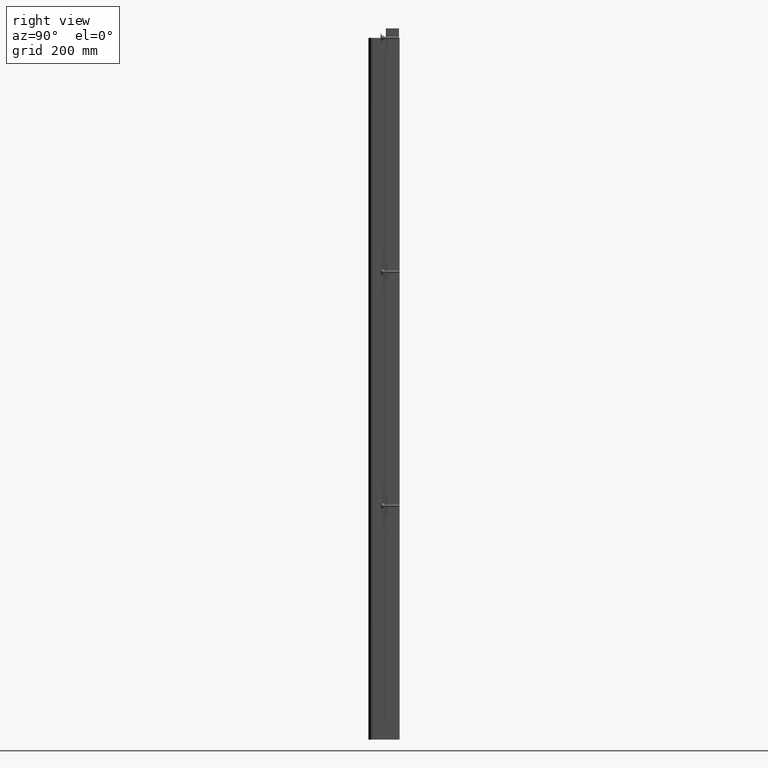
[diagram: clean part render]
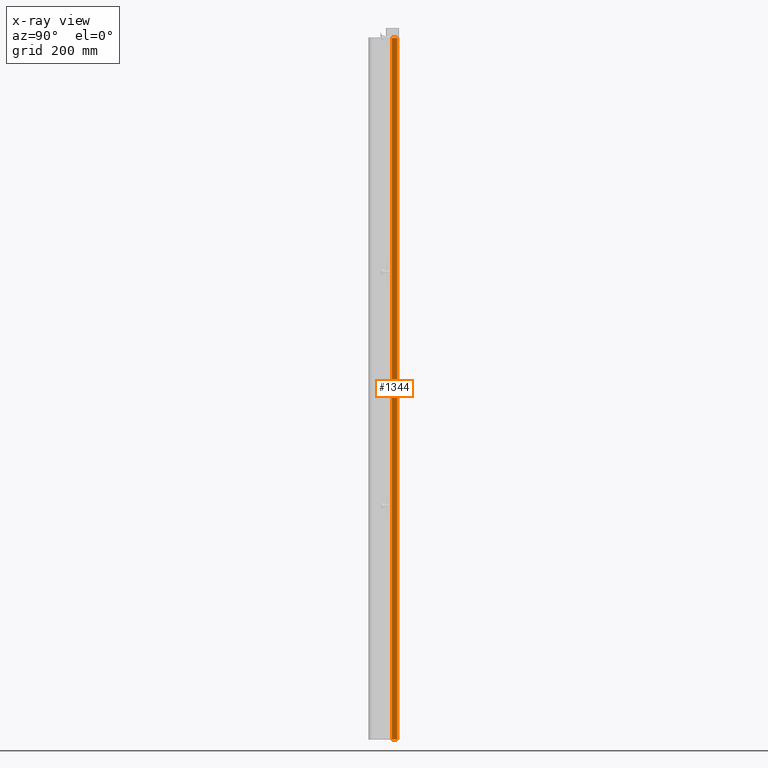
[diagram: x-ray — body ghosted, one internal face saturated and labeled with its STEP entity id]
A machine part, right view, then the same camera in x-ray: the body is ghosted and one INTERNAL B-rep face — a face not visible from any outside direction — is saturated and labeled: STEP entity #1344.
In plain terms, the highlighted planar face has unit normal (-1, 0, 0).
Its self-contained STEP definition (entity closure, byte-faithful):
#323=DIRECTION('',(0.E0,0.E0,-1.E0));
#324=VECTOR('',#323,1.76E1);
#325=CARTESIAN_POINT('',(-1.171E1,-1.2E3,-2.33E1));
#326=LINE('',#325,#324);
#353=DIRECTION('',(0.E0,0.E0,-1.E0));
#354=VECTOR('',#353,1.76E1);
#355=CARTESIAN_POINT('',(-1.171E1,1.2E3,-2.33E1));
#356=LINE('',#355,#354);
#473=DIRECTION('',(0.E0,1.E0,0.E0));
#474=VECTOR('',#473,2.4E3);
#475=CARTESIAN_POINT('',(-1.171E1,-1.2E3,-4.09E1));
#476=LINE('',#475,#474);
#477=DIRECTION('',(0.E0,1.E0,0.E0));
#478=VECTOR('',#477,2.4E3);
#479=CARTESIAN_POINT('',(-1.171E1,-1.2E3,-2.33E1));
#480=LINE('',#479,#478);
#859=CARTESIAN_POINT('',(-1.171E1,-1.2E3,-2.33E1));
#860=CARTESIAN_POINT('',(-1.171E1,-1.2E3,-4.09E1));
#861=VERTEX_POINT('',#859);
#862=VERTEX_POINT('',#860);
#897=CARTESIAN_POINT('',(-1.171E1,1.2E3,-2.33E1));
#898=CARTESIAN_POINT('',(-1.171E1,1.2E3,-4.09E1));
#899=VERTEX_POINT('',#897);
#900=VERTEX_POINT('',#898);
#1332=CARTESIAN_POINT('',(-1.171E1,-1.2E3,-2.33E1));
#1333=DIRECTION('',(1.E0,0.E0,0.E0));
#1334=DIRECTION('',(0.E0,0.E0,-1.E0));
#1335=AXIS2_PLACEMENT_3D('',#1332,#1333,#1334);
#1336=PLANE('',#1335);
#1337=ORIENTED_EDGE('',*,*,#1132,.F.);
#1339=ORIENTED_EDGE('',*,*,#1338,.T.);
#1340=ORIENTED_EDGE('',*,*,#1178,.T.);
#1341=ORIENTED_EDGE('',*,*,#1326,.F.);
#1342=EDGE_LOOP('',(#1337,#1339,#1340,#1341));
#1343=FACE_OUTER_BOUND('',#1342,.F.);
#1132=EDGE_CURVE('',#861,#862,#326,.T.);
#1178=EDGE_CURVE('',#899,#900,#356,.T.);
#1326=EDGE_CURVE('',#862,#900,#476,.T.);
#1338=EDGE_CURVE('',#861,#899,#480,.T.);
#1344=ADVANCED_FACE('',(#1343),#1336,.T.);